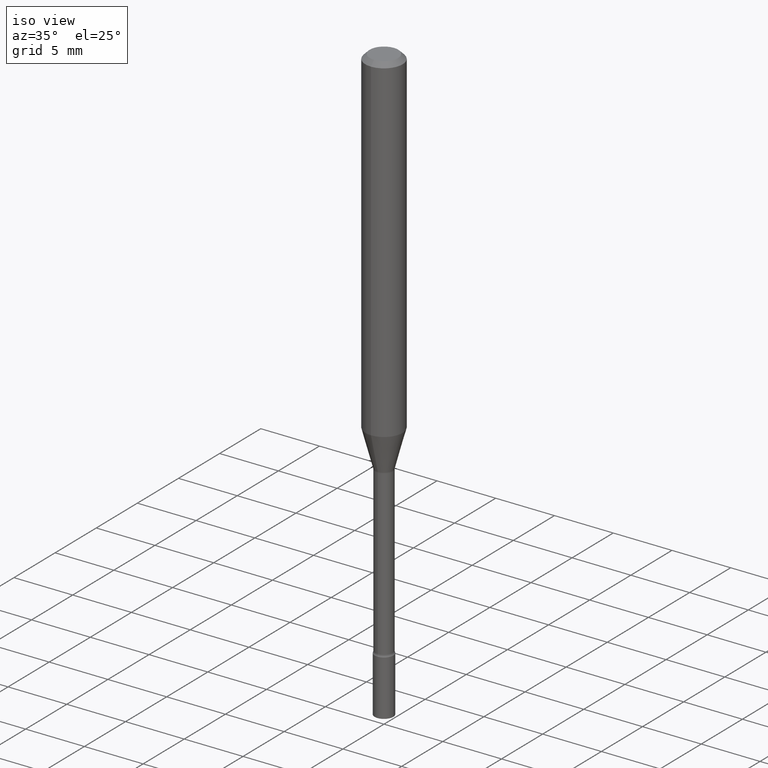
[diagram: clean part render]
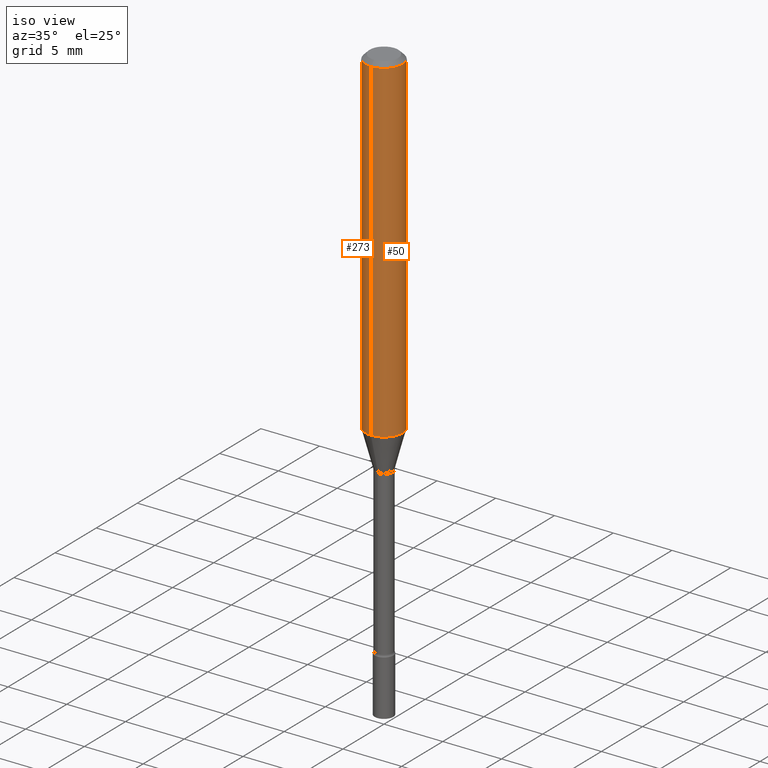
[diagram: same view with one multi-face feature highlighted, each face labeled with its STEP entity id]
A machine part, iso view. The highlighted faces form ONE feature: a constant-radius fillet chain: 2 tangent blend faces with common blend radius 1.5875 mm. The faces share edges in the B-rep.
Their STEP definitions:
[1] entity #50 (Cylinder):
#18 = CYLINDRICAL_SURFACE ( 'NONE', #394, 0.06250000000000000000 ) ;
#34 = ORIENTED_EDGE ( 'NONE', *, *, #174, .F. ) ;
#50 = ADVANCED_FACE ( 'NONE', ( #374 ), #18, .T. ) ;
#82 = CIRCLE ( 'NONE', #227, 0.06250000000000000000 ) ;
#86 = CARTESIAN_POINT ( 'NONE',  ( -4.364351673553912750E-16, -0.06250000000000005551, -0.01499999999999981209 ) ) ;
#89 = VERTEX_POINT ( 'NONE', #107 ) ;
#101 = DIRECTION ( 'NONE',  ( -2.445464431541942491E-29, 3.491487603581188597E-15, 1.000000000000000000 ) ) ;
#107 = CARTESIAN_POINT ( 'NONE',  ( 4.440892098500899305E-16, 0.06249999999999602401, -1.131536105567578554 ) ) ;
#116 = CARTESIAN_POINT ( 'NONE',  ( 4.440892098500904235E-16, 0.06249999999999995143, -0.01500000000000024751 ) ) ;
#121 = CARTESIAN_POINT ( 'NONE',  ( 3.668196647312921145E-31, -5.237231405371794162E-17, -0.01500000000000003067 ) ) ;
#174 = EDGE_CURVE ( 'NONE', #327, #357, #221, .T. ) ;
#177 = CIRCLE ( 'NONE', #240, 0.06250000000000000000 ) ;
#192 = EDGE_LOOP ( 'NONE', ( #212, #399, #323, #34 ) ) ;
#211 = EDGE_CURVE ( 'NONE', #327, #89, #82, .T. ) ;
#212 = ORIENTED_EDGE ( 'NONE', *, *, #211, .T. ) ;
#221 = LINE ( 'NONE', #472, #489 ) ;
#227 = AXIS2_PLACEMENT_3D ( 'NONE', #501, #298, #460 ) ;
#240 = AXIS2_PLACEMENT_3D ( 'NONE', #121, #277, #432 ) ;
#246 = EDGE_CURVE ( 'NONE', #89, #302, #353, .T. ) ;
#252 = DIRECTION ( 'NONE',  ( -6.982962677686265922E-15, -1.000000000000000000, 3.491487603581188597E-15 ) ) ;
#277 = DIRECTION ( 'NONE',  ( -2.445464431541942491E-29, 3.491487603581188597E-15, 1.000000000000000000 ) ) ;
#298 = DIRECTION ( 'NONE',  ( -2.445464431541942491E-29, 3.491487603581188597E-15, 1.000000000000000000 ) ) ;
#302 = VERTEX_POINT ( 'NONE', #116 ) ;
#323 = ORIENTED_EDGE ( 'NONE', *, *, #328, .F. ) ;
#327 = VERTEX_POINT ( 'NONE', #435 ) ;
#328 = EDGE_CURVE ( 'NONE', #357, #302, #177, .T. ) ;
#346 = CARTESIAN_POINT ( 'NONE',  ( 4.440892098500625669E-16, 0.06250000000000000000, -2.182179752238242873E-16 ) ) ;
#353 = LINE ( 'NONE', #346, #359 ) ;
#357 = VERTEX_POINT ( 'NONE', #86 ) ;
#359 = VECTOR ( 'NONE', #396, 39.37007874015748143 ) ;
#374 = FACE_OUTER_BOUND ( 'NONE', #192, .T. ) ;
#378 = DIRECTION ( 'NONE',  ( -2.445464431541942491E-29, 3.491487603581188597E-15, 1.000000000000000000 ) ) ;
#394 = AXIS2_PLACEMENT_3D ( 'NONE', #444, #101, #252 ) ;
#396 = DIRECTION ( 'NONE',  ( -2.445464431541942491E-29, 3.491487603581188597E-15, 1.000000000000000000 ) ) ;
#399 = ORIENTED_EDGE ( 'NONE', *, *, #246, .T. ) ;
#432 = DIRECTION ( 'NONE',  ( -6.982962677686265922E-15, -1.000000000000000000, 3.483106191921935554E-15 ) ) ;
#435 = CARTESIAN_POINT ( 'NONE',  ( -4.364351673553641579E-16, -0.06250000000000396905, -1.131536105567578110 ) ) ;
#444 = CARTESIAN_POINT ( 'NONE',  ( 0.000000000000000000, 0.000000000000000000, 0.000000000000000000 ) ) ;
#460 = DIRECTION ( 'NONE',  ( -6.982962677686265922E-15, -1.000000000000000000, 4.370956789862821150E-15 ) ) ;
#472 = CARTESIAN_POINT ( 'NONE',  ( -4.364351673553916201E-16, -0.06250000000000000000, 2.182179752238242873E-16 ) ) ;
#489 = VECTOR ( 'NONE', #378, 39.37007874015748143 ) ;
#501 = CARTESIAN_POINT ( 'NONE',  ( 2.767131299171001299E-29, -3.950744285593735369E-15, -1.131536105567578332 ) ) ;
[2] entity #273 (Cylinder):
#24 = DIRECTION ( 'NONE',  ( -2.445464431541942491E-29, 3.491487603581188597E-15, 1.000000000000000000 ) ) ;
#83 = EDGE_CURVE ( 'NONE', #302, #357, #496, .T. ) ;
#86 = CARTESIAN_POINT ( 'NONE',  ( -4.364351673553912750E-16, -0.06250000000000005551, -0.01499999999999981209 ) ) ;
#89 = VERTEX_POINT ( 'NONE', #107 ) ;
#97 = ORIENTED_EDGE ( 'NONE', *, *, #135, .T. ) ;
#107 = CARTESIAN_POINT ( 'NONE',  ( 4.440892098500899305E-16, 0.06249999999999602401, -1.131536105567578554 ) ) ;
#116 = CARTESIAN_POINT ( 'NONE',  ( 4.440892098500904235E-16, 0.06249999999999995143, -0.01500000000000024751 ) ) ;
#119 = FACE_OUTER_BOUND ( 'NONE', #309, .T. ) ;
#135 = EDGE_CURVE ( 'NONE', #89, #327, #409, .T. ) ;
#167 = ORIENTED_EDGE ( 'NONE', *, *, #83, .F. ) ;
#174 = EDGE_CURVE ( 'NONE', #327, #357, #221, .T. ) ;
#200 = CARTESIAN_POINT ( 'NONE',  ( 0.000000000000000000, 0.000000000000000000, 0.000000000000000000 ) ) ;
#215 = CARTESIAN_POINT ( 'NONE',  ( 3.668196647312921145E-31, -5.237231405371794162E-17, -0.01500000000000003067 ) ) ;
#217 = DIRECTION ( 'NONE',  ( -6.982962677686265922E-15, -1.000000000000000000, 4.370956789862821150E-15 ) ) ;
#221 = LINE ( 'NONE', #472, #489 ) ;
#235 = CYLINDRICAL_SURFACE ( 'NONE', #318, 0.06250000000000000000 ) ;
#246 = EDGE_CURVE ( 'NONE', #89, #302, #353, .T. ) ;
#273 = ADVANCED_FACE ( 'NONE', ( #119 ), #235, .T. ) ;
#302 = VERTEX_POINT ( 'NONE', #116 ) ;
#309 = EDGE_LOOP ( 'NONE', ( #508, #97, #390, #167 ) ) ;
#314 = DIRECTION ( 'NONE',  ( -2.445464431541942491E-29, 3.491487603581188597E-15, 1.000000000000000000 ) ) ;
#318 = AXIS2_PLACEMENT_3D ( 'NONE', #200, #314, #512 ) ;
#327 = VERTEX_POINT ( 'NONE', #435 ) ;
#341 = AXIS2_PLACEMENT_3D ( 'NONE', #215, #491, #376 ) ;
#346 = CARTESIAN_POINT ( 'NONE',  ( 4.440892098500625669E-16, 0.06250000000000000000, -2.182179752238242873E-16 ) ) ;
#353 = LINE ( 'NONE', #346, #359 ) ;
#357 = VERTEX_POINT ( 'NONE', #86 ) ;
#359 = VECTOR ( 'NONE', #396, 39.37007874015748143 ) ;
#376 = DIRECTION ( 'NONE',  ( -6.982962677686265922E-15, -1.000000000000000000, 3.483106191921935554E-15 ) ) ;
#378 = DIRECTION ( 'NONE',  ( -2.445464431541942491E-29, 3.491487603581188597E-15, 1.000000000000000000 ) ) ;
#380 = CARTESIAN_POINT ( 'NONE',  ( 2.767131299171001299E-29, -3.950744285593735369E-15, -1.131536105567578332 ) ) ;
#390 = ORIENTED_EDGE ( 'NONE', *, *, #174, .T. ) ;
#396 = DIRECTION ( 'NONE',  ( -2.445464431541942491E-29, 3.491487603581188597E-15, 1.000000000000000000 ) ) ;
#409 = CIRCLE ( 'NONE', #436, 0.06250000000000000000 ) ;
#435 = CARTESIAN_POINT ( 'NONE',  ( -4.364351673553641579E-16, -0.06250000000000396905, -1.131536105567578110 ) ) ;
#436 = AXIS2_PLACEMENT_3D ( 'NONE', #380, #24, #217 ) ;
#472 = CARTESIAN_POINT ( 'NONE',  ( -4.364351673553916201E-16, -0.06250000000000000000, 2.182179752238242873E-16 ) ) ;
#489 = VECTOR ( 'NONE', #378, 39.37007874015748143 ) ;
#491 = DIRECTION ( 'NONE',  ( -2.445464431541942491E-29, 3.491487603581188597E-15, 1.000000000000000000 ) ) ;
#496 = CIRCLE ( 'NONE', #341, 0.06250000000000000000 ) ;
#508 = ORIENTED_EDGE ( 'NONE', *, *, #246, .F. ) ;
#512 = DIRECTION ( 'NONE',  ( -6.982962677686265922E-15, -1.000000000000000000, 3.491487603581188597E-15 ) ) ;